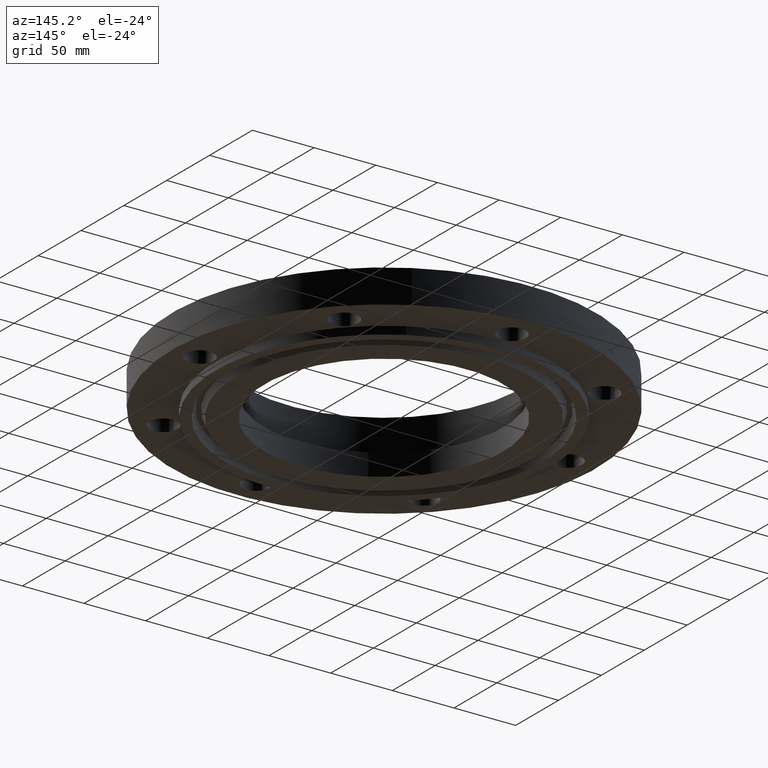
[diagram: clean part render]
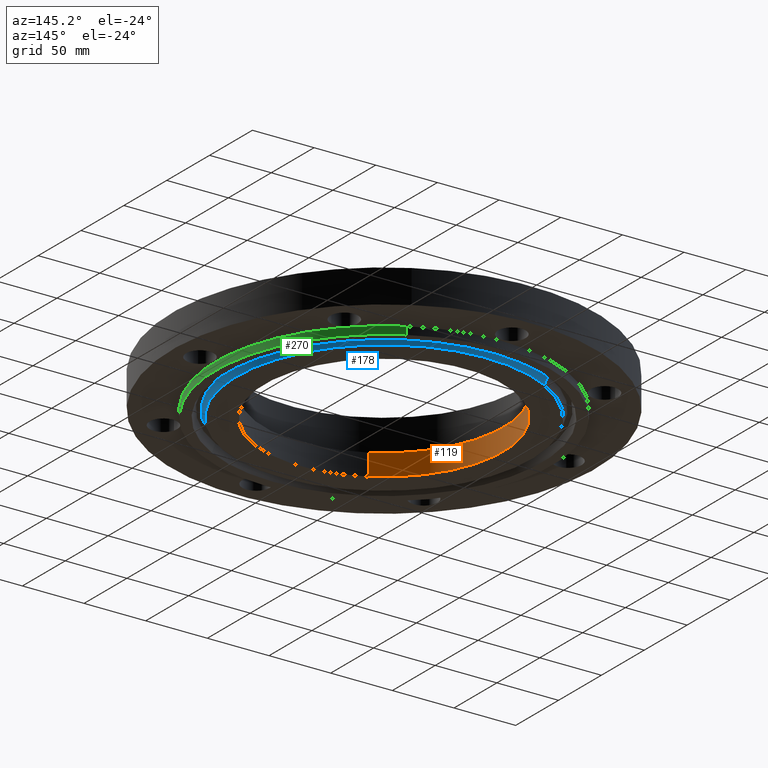
[diagram: same view with three faces highlighted in distinct colors, each labeled with its STEP entity id]
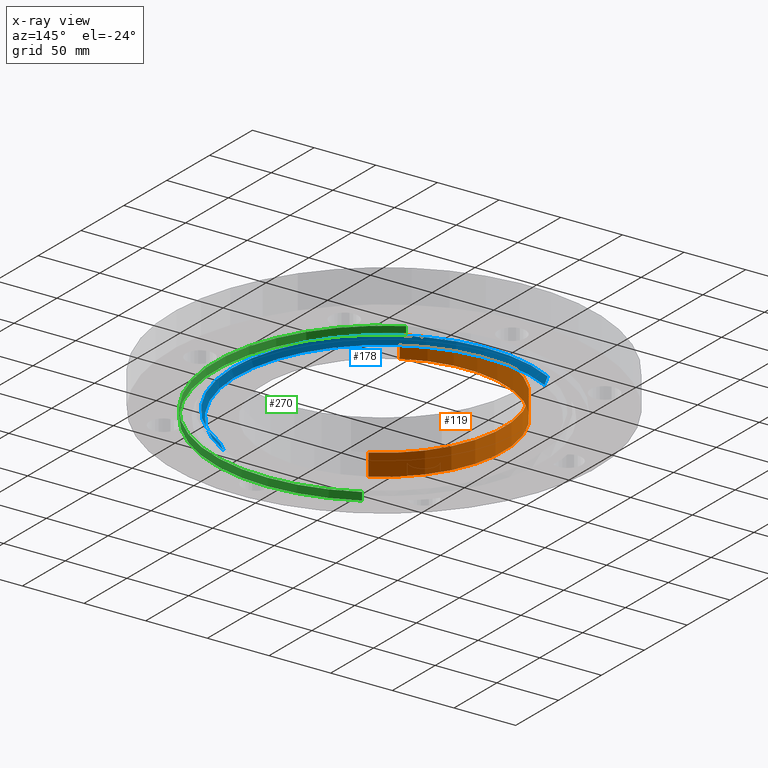
[diagram: x-ray of the same camera — body ghosted, the three highlighted faces saturated]
A machine part, auxiliary view with three faces highlighted in distinct colors.
The next image is the same camera in x-ray (body ghosted, the three faces saturated) — at least one of them is partly hidden behind the body in this view.
Their STEP definitions:

[orange] entity #119 — the highlighted cylindrical surface (partial cylindrical patch) has radius 96.8375 mm, axis along (0, 0, -1).
#60=AXIS2_PLACEMENT_3D('Circle Axis2P3D',#58,#59,$) ;
#80=AXIS2_PLACEMENT_3D('Cylinder Axis2P3D',#77,#78,#79) ;
#110=AXIS2_PLACEMENT_3D('Circle Axis2P3D',#108,#109,$) ;
#58=CARTESIAN_POINT('Axis2P3D Location',(-1.01406197525E-015,-2.09805925913E-016,0.440000000002)) ;
#62=CARTESIAN_POINT('Vertex',(-1.82780986594,-3.34578351722,0.440000000002)) ;
#64=CARTESIAN_POINT('Vertex',(1.82780986594,3.34578351722,0.440000000002)) ;
#77=CARTESIAN_POINT('Axis2P3D Location',(0.,0.,0.720000000003)) ;
#82=CARTESIAN_POINT('Line Origine',(1.82780986594,3.34578351722,0.0950000000004)) ;
#86=CARTESIAN_POINT('Vertex',(1.82780986594,3.34578351722,-0.250000000001)) ;
#93=CARTESIAN_POINT('Vertex',(-1.82780986594,-3.34578351722,-0.250000000001)) ;
#96=CARTESIAN_POINT('Line Origine',(-1.82780986594,-3.34578351722,0.0950000000004)) ;
#108=CARTESIAN_POINT('Axis2P3D Location',(0.,0.,-0.250000000001)) ;
#59=DIRECTION('Axis2P3D Direction',(0.,0.,-0.0393700787402)) ;
#78=DIRECTION('Axis2P3D Direction',(0.,0.,-0.0393700787402)) ;
#79=DIRECTION('Axis2P3D XDirection',(-0.0188750212049,-0.0345504945626,0.)) ;
#83=DIRECTION('Vector Direction',(0.,0.,-0.0393700787402)) ;
#97=DIRECTION('Vector Direction',(0.,0.,-0.0393700787402)) ;
#109=DIRECTION('Axis2P3D Direction',(0.,0.,-0.0393700787402)) ;
#84=VECTOR('Line Direction',#83,0.0393700787402) ;
#98=VECTOR('Line Direction',#97,0.0393700787402) ;
#114=ORIENTED_EDGE('',*,*,#100,.T.) ;
#115=ORIENTED_EDGE('',*,*,#112,.T.) ;
#116=ORIENTED_EDGE('',*,*,#88,.F.) ;
#117=ORIENTED_EDGE('',*,*,#66,.F.) ;
#119=ADVANCED_FACE('PartBody',(#118),#81,.F.) ;
#61=CIRCLE('generated circle',#60,3.81250000002) ;
#111=CIRCLE('generated circle',#110,3.81250000002) ;
#81=CYLINDRICAL_SURFACE('generated cylinder',#80,3.81250000002) ;
#66=EDGE_CURVE('',#63,#65,#61,.T.) ;
#88=EDGE_CURVE('',#65,#87,#85,.T.) ;
#100=EDGE_CURVE('',#63,#94,#99,.T.) ;
#112=EDGE_CURVE('',#94,#87,#111,.T.) ;
#113=EDGE_LOOP('',(#114,#115,#116,#117)) ;
#118=FACE_OUTER_BOUND('',#113,.T.) ;
#85=LINE('Line',#82,#84) ;
#99=LINE('Line',#96,#98) ;
#63=VERTEX_POINT('',#62) ;
#65=VERTEX_POINT('',#64) ;
#87=VERTEX_POINT('',#86) ;
#94=VERTEX_POINT('',#93) ;

[blue] entity #178 — the highlighted conical surface has half-angle 23 deg.
#127=AXIS2_PLACEMENT_3D('Circle Axis2P3D',#125,#126,$) ;
#151=AXIS2_PLACEMENT_3D('Cone Axis2P3D',#148,#149,#150) ;
#162=AXIS2_PLACEMENT_3D('Circle Axis2P3D',#160,#161,$) ;
#125=CARTESIAN_POINT('Axis2P3D Location',(-1.67844740731E-015,5.59482469102E-016,-0.250000000001)) ;
#129=CARTESIAN_POINT('Vertex',(-2.25479823626,4.12738048641,-0.250000000001)) ;
#131=CARTESIAN_POINT('Vertex',(2.25479823626,-4.12738048641,-0.250000000001)) ;
#148=CARTESIAN_POINT('Axis2P3D Location',(0.,0.,-0.310000000001)) ;
#153=CARTESIAN_POINT('Line Origine',(-2.27829892134,4.17039820191,-0.134519826118)) ;
#157=CARTESIAN_POINT('Vertex',(-2.30179960643,4.21341591742,-0.0190396522348)) ;
#160=CARTESIAN_POINT('Axis2P3D Location',(0.,0.,-0.0190396522348)) ;
#164=CARTESIAN_POINT('Vertex',(2.30179960643,-4.21341591742,-0.0190396522348)) ;
#167=CARTESIAN_POINT('Line Origine',(2.27829892134,-4.17039820191,-0.134519826118)) ;
#126=DIRECTION('Axis2P3D Direction',(0.,0.,-0.0393700787402)) ;
#149=DIRECTION('Axis2P3D Direction',(0.,0.,0.0393700787402)) ;
#150=DIRECTION('Axis2P3D XDirection',(-0.0188750212049,0.0345504945626,0.)) ;
#154=DIRECTION('Vector Direction',(-0.00737505833565,0.0134999537303,0.0362403485611)) ;
#161=DIRECTION('Axis2P3D Direction',(0.,0.,0.0393700787402)) ;
#168=DIRECTION('Vector Direction',(0.00737505833565,-0.0134999537303,0.0362403485611)) ;
#155=VECTOR('Line Direction',#154,0.0393700787402) ;
#169=VECTOR('Line Direction',#168,0.0393700787402) ;
#173=ORIENTED_EDGE('',*,*,#159,.F.) ;
#174=ORIENTED_EDGE('',*,*,#166,.F.) ;
#175=ORIENTED_EDGE('',*,*,#171,.T.) ;
#176=ORIENTED_EDGE('',*,*,#133,.F.) ;
#178=ADVANCED_FACE('PartBody',(#177),#152,.T.) ;
#128=CIRCLE('generated circle',#127,4.70312500002) ;
#163=CIRCLE('generated circle',#162,4.80116185119) ;
#152=CONICAL_SURFACE('Cone',#151,4.67765651105,0.401425727959) ;
#133=EDGE_CURVE('',#130,#132,#128,.T.) ;
#159=EDGE_CURVE('',#158,#130,#156,.F.) ;
#166=EDGE_CURVE('',#165,#158,#163,.T.) ;
#171=EDGE_CURVE('',#165,#132,#170,.F.) ;
#172=EDGE_LOOP('',(#173,#174,#175,#176)) ;
#177=FACE_OUTER_BOUND('',#172,.T.) ;
#156=LINE('Line',#153,#155) ;
#170=LINE('Line',#167,#169) ;
#130=VERTEX_POINT('',#129) ;
#132=VERTEX_POINT('',#131) ;
#158=VERTEX_POINT('',#157) ;
#165=VERTEX_POINT('',#164) ;

[green] entity #270 — the highlighted cylindrical surface (partial cylindrical patch) has radius 136.525 mm, axis along (0, 0, -1).
#202=AXIS2_PLACEMENT_3D('Circle Axis2P3D',#200,#201,$) ;
#231=AXIS2_PLACEMENT_3D('Cylinder Axis2P3D',#228,#229,#230) ;
#261=AXIS2_PLACEMENT_3D('Circle Axis2P3D',#259,#260,$) ;
#195=CARTESIAN_POINT('Vertex',(-2.57691227001,-4.71700627018,-0.250000000001)) ;
#197=CARTESIAN_POINT('Vertex',(2.57691227001,4.71700627018,-0.250000000001)) ;
#200=CARTESIAN_POINT('Axis2P3D Location',(0.,0.,-0.250000000001)) ;
#228=CARTESIAN_POINT('Axis2P3D Location',(0.,0.,0.720000000003)) ;
#233=CARTESIAN_POINT('Line Origine',(-2.57691227001,-4.71700627018,-0.125)) ;
#237=CARTESIAN_POINT('Vertex',(-2.57691227001,-4.71700627018,5.59482469102E-016)) ;
#244=CARTESIAN_POINT('Vertex',(2.57691227001,4.71700627018,5.59482469102E-016)) ;
#247=CARTESIAN_POINT('Line Origine',(2.57691227001,4.71700627018,-0.125)) ;
#259=CARTESIAN_POINT('Axis2P3D Location',(0.,0.,5.59482469102E-016)) ;
#201=DIRECTION('Axis2P3D Direction',(0.,0.,-0.0393700787402)) ;
#229=DIRECTION('Axis2P3D Direction',(0.,0.,-0.0393700787402)) ;
#230=DIRECTION('Axis2P3D XDirection',(0.0188750212049,0.0345504945626,0.)) ;
#234=DIRECTION('Vector Direction',(0.,0.,-0.0393700787402)) ;
#248=DIRECTION('Vector Direction',(0.,0.,-0.0393700787402)) ;
#260=DIRECTION('Axis2P3D Direction',(0.,0.,-0.0393700787402)) ;
#235=VECTOR('Line Direction',#234,0.0393700787402) ;
#249=VECTOR('Line Direction',#248,0.0393700787402) ;
#265=ORIENTED_EDGE('',*,*,#204,.F.) ;
#266=ORIENTED_EDGE('',*,*,#251,.T.) ;
#267=ORIENTED_EDGE('',*,*,#263,.T.) ;
#268=ORIENTED_EDGE('',*,*,#239,.F.) ;
#270=ADVANCED_FACE('PartBody',(#269),#232,.T.) ;
#203=CIRCLE('generated circle',#202,5.37500000002) ;
#262=CIRCLE('generated circle',#261,5.37500000002) ;
#232=CYLINDRICAL_SURFACE('generated cylinder',#231,5.37500000002) ;
#204=EDGE_CURVE('',#198,#196,#203,.T.) ;
#239=EDGE_CURVE('',#196,#238,#236,.F.) ;
#251=EDGE_CURVE('',#198,#245,#250,.F.) ;
#263=EDGE_CURVE('',#245,#238,#262,.T.) ;
#264=EDGE_LOOP('',(#265,#266,#267,#268)) ;
#269=FACE_OUTER_BOUND('',#264,.T.) ;
#236=LINE('Line',#233,#235) ;
#250=LINE('Line',#247,#249) ;
#196=VERTEX_POINT('',#195) ;
#198=VERTEX_POINT('',#197) ;
#238=VERTEX_POINT('',#237) ;
#245=VERTEX_POINT('',#244) ;